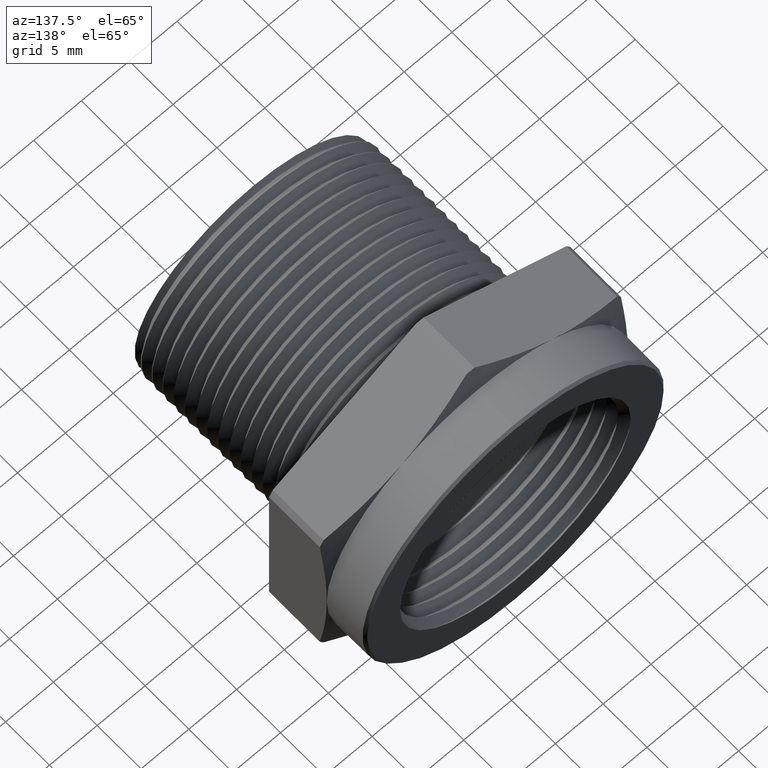
[diagram: clean part render]
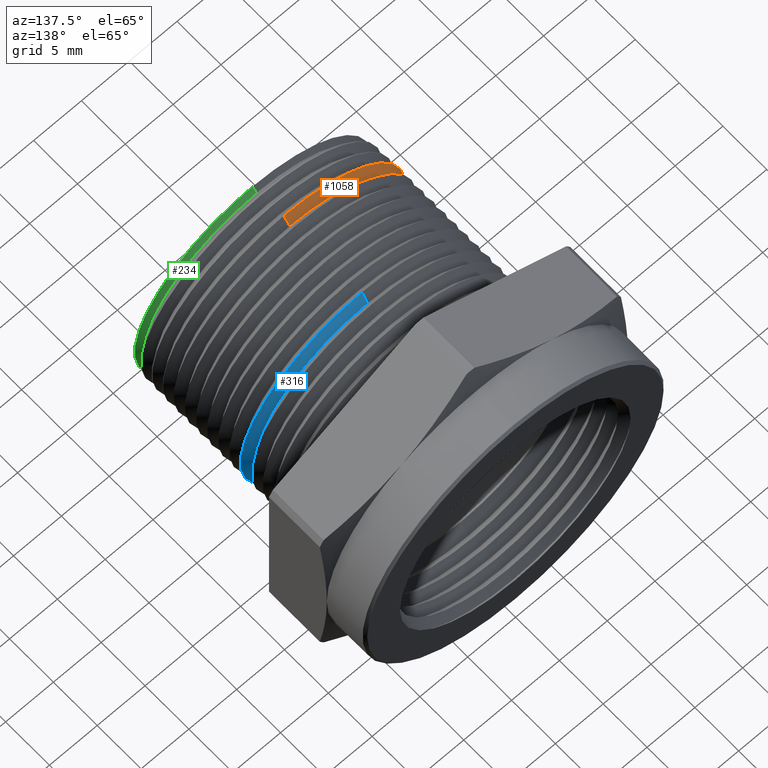
[diagram: same view with three faces highlighted in distinct colors, each labeled with its STEP entity id]
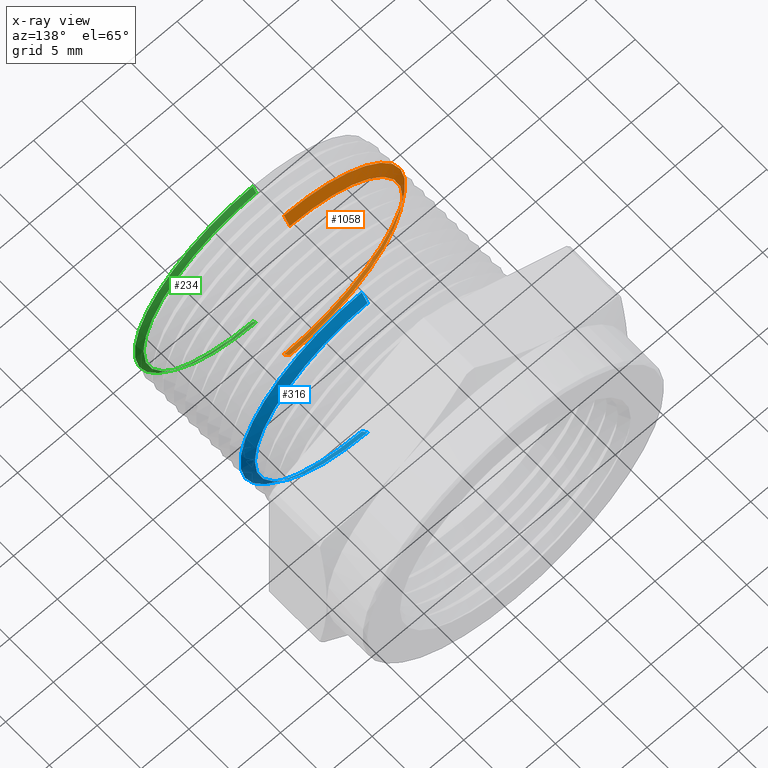
[diagram: x-ray of the same camera — body ghosted, the three highlighted faces saturated]
A machine part, auxiliary view with three faces highlighted in distinct colors.
The next image is the same camera in x-ray (body ghosted, the three faces saturated) — at least one of them is partly hidden behind the body in this view.
Their STEP definitions:

[orange] entity #1058 — the highlighted conical surface has half-angle 53.5 deg.
#182 = VERTEX_POINT ( 'NONE', #1433 ) ;
#196 = VERTEX_POINT ( 'NONE', #1461 ) ;
#198 = VERTEX_POINT ( 'NONE', #1460 ) ;
#201 = EDGE_CURVE ( 'NONE', #204, #198, #1515, .T. ) ;
#204 = VERTEX_POINT ( 'NONE', #1506 ) ;
#217 = EDGE_CURVE ( 'NONE', #196, #182, #1492, .T. ) ;
#564 = EDGE_CURVE ( 'NONE', #198, #182, #2199, .T. ) ;
#1058 = ADVANCED_FACE ( 'NONE', ( #3024 ), #3021, .T. ) ;
#1059 = EDGE_LOOP ( 'NONE', ( #1060, #1061, #1062, #1063 ) ) ;
#1060 = ORIENTED_EDGE ( 'NONE', *, *, #201, .F. ) ;
#1061 = ORIENTED_EDGE ( 'NONE', *, *, #1078, .T. ) ;
#1062 = ORIENTED_EDGE ( 'NONE', *, *, #217, .T. ) ;
#1063 = ORIENTED_EDGE ( 'NONE', *, *, #564, .F. ) ;
#1078 = EDGE_CURVE ( 'NONE', #204, #196, #3002, .T. ) ;
#1433 = CARTESIAN_POINT ( 'NONE',  ( 6.111459937161679100E-017, 0.1404577770322458500, -0.4990385751562586000 ) ) ;
#1460 = CARTESIAN_POINT ( 'NONE',  ( 0.0000000000000000000, 0.1404577770322458500, 0.4990385751562586000 ) ) ;
#1461 = CARTESIAN_POINT ( 'NONE',  ( 5.901992841485440000E-017, 0.1663104676866709900, -0.4641006689245972300 ) ) ;
#1489 = DIRECTION ( 'NONE',  ( 0.0000000000000000000, -0.5948227867513450300, -0.8038568606172145100 ) ) ;
#1490 = VECTOR ( 'NONE', #1489, 39.37007874015748100 ) ;
#1491 = CARTESIAN_POINT ( 'NONE',  ( 0.0000000000000000000, 0.1300032405425550500, -0.5131670703467501300 ) ) ;
#1492 = LINE ( 'NONE', #1491, #1490 ) ;
#1506 = CARTESIAN_POINT ( 'NONE',  ( 0.0000000000000000000, 0.1663104676866709900, 0.4641006689245972300 ) ) ;
#1512 = DIRECTION ( 'NONE',  ( 9.844407313275118400E-017, -0.5948227867513450300, 0.8038568606172145100 ) ) ;
#1513 = VECTOR ( 'NONE', #1512, 39.37007874015748100 ) ;
#1514 = CARTESIAN_POINT ( 'NONE',  ( 6.284484101279722200E-017, 0.1300032405425550500, 0.5131670703467501300 ) ) ;
#1515 = LINE ( 'NONE', #1514, #1513 ) ;
#2195 = DIRECTION ( 'NONE',  ( 0.0000000000000000000, 0.0000000000000000000, -1.000000000000000000 ) ) ;
#2196 = DIRECTION ( 'NONE',  ( -0.0000000000000000000, -1.000000000000000000, -0.0000000000000000000 ) ) ;
#2197 = CARTESIAN_POINT ( 'NONE',  ( 0.0000000000000000000, 0.1404577770322458500, 0.0000000000000000000 ) ) ;
#2198 = AXIS2_PLACEMENT_3D ( 'NONE', #2197, #2196, #2195 ) ;
#2199 = CIRCLE ( 'NONE', #2198, 0.4990385751562586000 ) ;
#2995 = DIRECTION ( 'NONE',  ( -0.0000000000000000000, -1.000000000000000000, -0.0000000000000000000 ) ) ;
#2996 = CARTESIAN_POINT ( 'NONE',  ( 0.0000000000000000000, 0.1663104676866709900, 0.0000000000000000000 ) ) ;
#2997 = AXIS2_PLACEMENT_3D ( 'NONE', #2996, #2995, #3054 ) ;
#3002 = CIRCLE ( 'NONE', #2997, 0.4641006689245972300 ) ;
#3016 = DIRECTION ( 'NONE',  ( 0.0000000000000000000, 0.0000000000000000000, -1.000000000000000000 ) ) ;
#3017 = DIRECTION ( 'NONE',  ( -0.0000000000000000000, -1.000000000000000000, -0.0000000000000000000 ) ) ;
#3018 = CARTESIAN_POINT ( 'NONE',  ( 0.0000000000000000000, 0.1300032405425550500, 0.0000000000000000000 ) ) ;
#3019 = AXIS2_PLACEMENT_3D ( 'NONE', #3018, #3017, #3016 ) ;
#3021 = CONICAL_SURFACE ( 'NONE', #3019, 0.5131670703467501300, 0.9337511498169616100 ) ;
#3024 = FACE_OUTER_BOUND ( 'NONE', #1059, .T. ) ;
#3054 = DIRECTION ( 'NONE',  ( 0.0000000000000000000, 0.0000000000000000000, -1.000000000000000000 ) ) ;

[blue] entity #316 — the highlighted conical surface has half-angle 53.5 deg.
#122 = EDGE_CURVE ( 'NONE', #127, #124, #1310, .T. ) ;
#124 = VERTEX_POINT ( 'NONE', #1305 ) ;
#127 = VERTEX_POINT ( 'NONE', #1355 ) ;
#288 = ORIENTED_EDGE ( 'NONE', *, *, #973, .T. ) ;
#289 = ORIENTED_EDGE ( 'NONE', *, *, #290, .T. ) ;
#290 = EDGE_CURVE ( 'NONE', #969, #127, #1621, .T. ) ;
#316 = ADVANCED_FACE ( 'NONE', ( #1700 ), #1699, .T. ) ;
#317 = EDGE_LOOP ( 'NONE', ( #288, #289, #318, #319 ) ) ;
#318 = ORIENTED_EDGE ( 'NONE', *, *, #122, .T. ) ;
#319 = ORIENTED_EDGE ( 'NONE', *, *, #320, .F. ) ;
#320 = EDGE_CURVE ( 'NONE', #983, #124, #1694, .T. ) ;
#969 = VERTEX_POINT ( 'NONE', #2895 ) ;
#973 = EDGE_CURVE ( 'NONE', #983, #969, #2894, .T. ) ;
#983 = VERTEX_POINT ( 'NONE', #2877 ) ;
#1301 = DIRECTION ( 'NONE',  ( 0.0000000000000000000, 0.0000000000000000000, 1.000000000000000000 ) ) ;
#1302 = DIRECTION ( 'NONE',  ( 0.0000000000000000000, 1.000000000000000000, 0.0000000000000000000 ) ) ;
#1303 = CARTESIAN_POINT ( 'NONE',  ( 0.0000000000000000000, 0.4899180986532956600, 0.0000000000000000000 ) ) ;
#1304 = AXIS2_PLACEMENT_3D ( 'NONE', #1303, #1302, #1301 ) ;
#1305 = CARTESIAN_POINT ( 'NONE',  ( 0.0000000000000000000, 0.4899180986532956600, -0.4997679086268464500 ) ) ;
#1310 = CIRCLE ( 'NONE', #1304, 0.4997679086268465000 ) ;
#1355 = CARTESIAN_POINT ( 'NONE',  ( 6.120391696164343900E-017, 0.4899180986532956600, 0.4997679086268464500 ) ) ;
#1618 = DIRECTION ( 'NONE',  ( 9.844407313275118400E-017, -0.5948227867513450300, 0.8038568606172145100 ) ) ;
#1619 = VECTOR ( 'NONE', #1618, 39.37007874015748100 ) ;
#1620 = CARTESIAN_POINT ( 'NONE',  ( 6.284484101279722200E-017, 0.4800032405425551100, 0.5131670703467501300 ) ) ;
#1621 = LINE ( 'NONE', #1620, #1619 ) ;
#1691 = DIRECTION ( 'NONE',  ( 0.0000000000000000000, -0.5948227867513450300, -0.8038568606172145100 ) ) ;
#1692 = VECTOR ( 'NONE', #1691, 39.37007874015748100 ) ;
#1693 = CARTESIAN_POINT ( 'NONE',  ( 0.0000000000000000000, 0.4800032405425551100, -0.5131670703467501300 ) ) ;
#1694 = LINE ( 'NONE', #1693, #1692 ) ;
#1695 = DIRECTION ( 'NONE',  ( 0.0000000000000000000, 0.0000000000000000000, -1.000000000000000000 ) ) ;
#1696 = DIRECTION ( 'NONE',  ( -0.0000000000000000000, -1.000000000000000000, -0.0000000000000000000 ) ) ;
#1697 = CARTESIAN_POINT ( 'NONE',  ( 0.0000000000000000000, 0.4800032405425551100, 0.0000000000000000000 ) ) ;
#1698 = AXIS2_PLACEMENT_3D ( 'NONE', #1697, #1696, #1695 ) ;
#1699 = CONICAL_SURFACE ( 'NONE', #1698, 0.5131670703467501300, 0.9337511498169616100 ) ;
#1700 = FACE_OUTER_BOUND ( 'NONE', #317, .T. ) ;
#2877 = CARTESIAN_POINT ( 'NONE',  ( 0.0000000000000000000, 0.5163104676866709900, -0.4641006689245972300 ) ) ;
#2890 = DIRECTION ( 'NONE',  ( 0.0000000000000000000, 0.0000000000000000000, -1.000000000000000000 ) ) ;
#2891 = DIRECTION ( 'NONE',  ( -0.0000000000000000000, -1.000000000000000000, -0.0000000000000000000 ) ) ;
#2892 = CARTESIAN_POINT ( 'NONE',  ( 0.0000000000000000000, 0.5163104676866709900, 0.0000000000000000000 ) ) ;
#2893 = AXIS2_PLACEMENT_3D ( 'NONE', #2892, #2891, #2890 ) ;
#2894 = CIRCLE ( 'NONE', #2893, 0.4641006689245972300 ) ;
#2895 = CARTESIAN_POINT ( 'NONE',  ( 5.901992841485440000E-017, 0.5163104676866709900, 0.4641006689245972300 ) ) ;

[green] entity #234 — the highlighted conical surface has half-angle 53.5 deg.
#224 = VERTEX_POINT ( 'NONE', #1539 ) ;
#225 = ORIENTED_EDGE ( 'NONE', *, *, #3268, .F. ) ;
#226 = ORIENTED_EDGE ( 'NONE', *, *, #3249, .F. ) ;
#231 = EDGE_CURVE ( 'NONE', #232, #233, #1538, .T. ) ;
#232 = VERTEX_POINT ( 'NONE', #1533 ) ;
#233 = VERTEX_POINT ( 'NONE', #1532 ) ;
#234 = ADVANCED_FACE ( 'NONE', ( #1531 ), #1528, .T. ) ;
#235 = ORIENTED_EDGE ( 'NONE', *, *, #231, .T. ) ;
#236 = EDGE_LOOP ( 'NONE', ( #235, #3252, #226, #225 ) ) ;
#1525 = DIRECTION ( 'NONE',  ( 0.0000000000000000000, 0.0000000000000000000, -1.000000000000000000 ) ) ;
#1526 = DIRECTION ( 'NONE',  ( -0.0000000000000000000, -1.000000000000000000, -0.0000000000000000000 ) ) ;
#1527 = AXIS2_PLACEMENT_3D ( 'NONE', #1530, #1526, #1525 ) ;
#1528 = CONICAL_SURFACE ( 'NONE', #1527, 0.5131670703467501300, 0.9337511498169616100 ) ;
#1530 = CARTESIAN_POINT ( 'NONE',  ( 0.0000000000000000000, -0.01999675945744491100, 0.0000000000000000000 ) ) ;
#1531 = FACE_OUTER_BOUND ( 'NONE', #236, .T. ) ;
#1532 = CARTESIAN_POINT ( 'NONE',  ( 0.0000000000000000000, 0.01631046768667102100, 0.4641006689245972300 ) ) ;
#1533 = CARTESIAN_POINT ( 'NONE',  ( 5.881043072938309500E-017, 0.01631046768667102100, -0.4641006689245972300 ) ) ;
#1534 = DIRECTION ( 'NONE',  ( 0.0000000000000000000, 0.0000000000000000000, -1.000000000000000000 ) ) ;
#1535 = DIRECTION ( 'NONE',  ( -0.0000000000000000000, -1.000000000000000000, -0.0000000000000000000 ) ) ;
#1536 = CARTESIAN_POINT ( 'NONE',  ( 0.0000000000000000000, 0.01631046768667102100, 0.0000000000000000000 ) ) ;
#1537 = AXIS2_PLACEMENT_3D ( 'NONE', #1536, #1535, #1534 ) ;
#1538 = CIRCLE ( 'NONE', #1537, 0.4641006689245972300 ) ;
#1539 = CARTESIAN_POINT ( 'NONE',  ( 5.953534700165123800E-017, 4.268512490100411300E-018, 0.4861430009297542700 ) ) ;
#3081 = DIRECTION ( 'NONE',  ( 0.0000000000000000000, 0.0000000000000000000, -1.000000000000000000 ) ) ;
#3082 = DIRECTION ( 'NONE',  ( -0.0000000000000000000, -1.000000000000000000, -0.0000000000000000000 ) ) ;
#3083 = CARTESIAN_POINT ( 'NONE',  ( 0.0000000000000000000, 4.268512490100411300E-018, 0.0000000000000000000 ) ) ;
#3084 = AXIS2_PLACEMENT_3D ( 'NONE', #3083, #3082, #3081 ) ;
#3085 = CIRCLE ( 'NONE', #3084, 0.4861430009297542700 ) ;
#3091 = DIRECTION ( 'NONE',  ( 9.844407313275118400E-017, -0.5948227867513450300, 0.8038568606172145100 ) ) ;
#3092 = VECTOR ( 'NONE', #3091, 39.37007874015748100 ) ;
#3093 = CARTESIAN_POINT ( 'NONE',  ( 6.284484101279722200E-017, -0.01999675945744491100, 0.5131670703467501300 ) ) ;
#3094 = LINE ( 'NONE', #3093, #3092 ) ;
#3110 = CARTESIAN_POINT ( 'NONE',  ( 0.0000000000000000000, 4.268512490100411300E-018, -0.4861430009297542700 ) ) ;
#3113 = DIRECTION ( 'NONE',  ( 0.0000000000000000000, -0.5948227867513450300, -0.8038568606172145100 ) ) ;
#3114 = VECTOR ( 'NONE', #3113, 39.37007874015748100 ) ;
#3115 = CARTESIAN_POINT ( 'NONE',  ( 0.0000000000000000000, -0.01999675945744491100, -0.5131670703467501300 ) ) ;
#3116 = LINE ( 'NONE', #3115, #3114 ) ;
#3249 = EDGE_CURVE ( 'NONE', #3272, #224, #3085, .T. ) ;
#3252 = ORIENTED_EDGE ( 'NONE', *, *, #3276, .T. ) ;
#3268 = EDGE_CURVE ( 'NONE', #232, #3272, #3116, .T. ) ;
#3272 = VERTEX_POINT ( 'NONE', #3110 ) ;
#3276 = EDGE_CURVE ( 'NONE', #233, #224, #3094, .T. ) ;